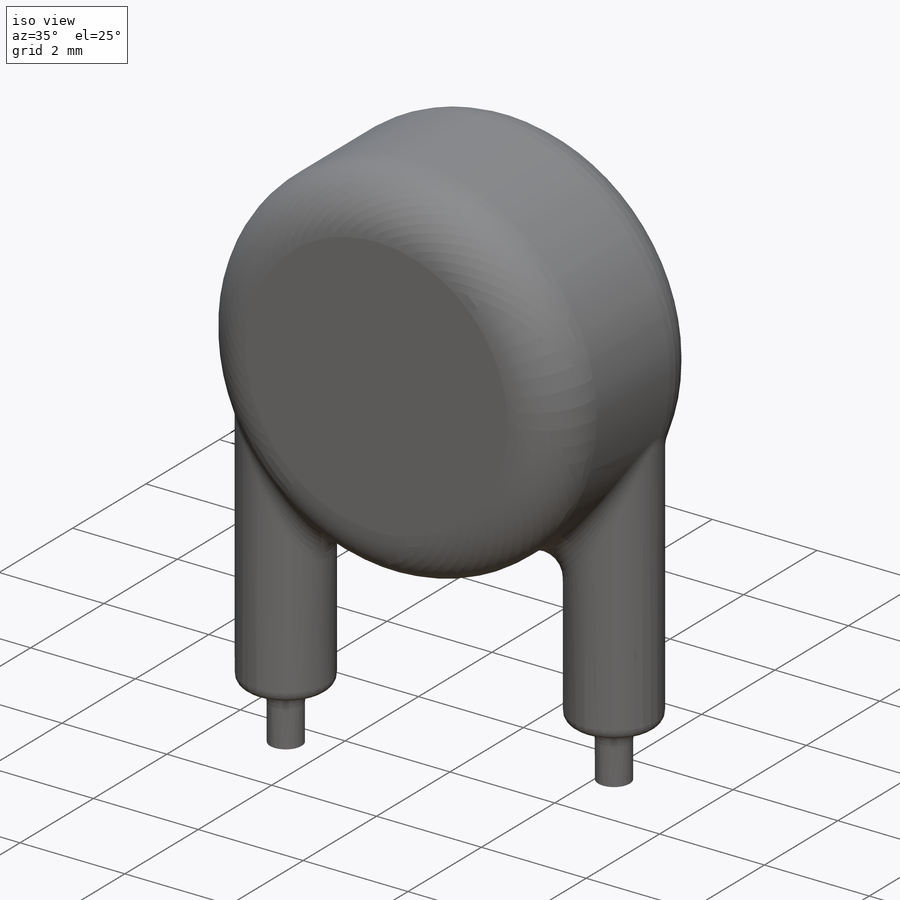
[diagram: iso view]
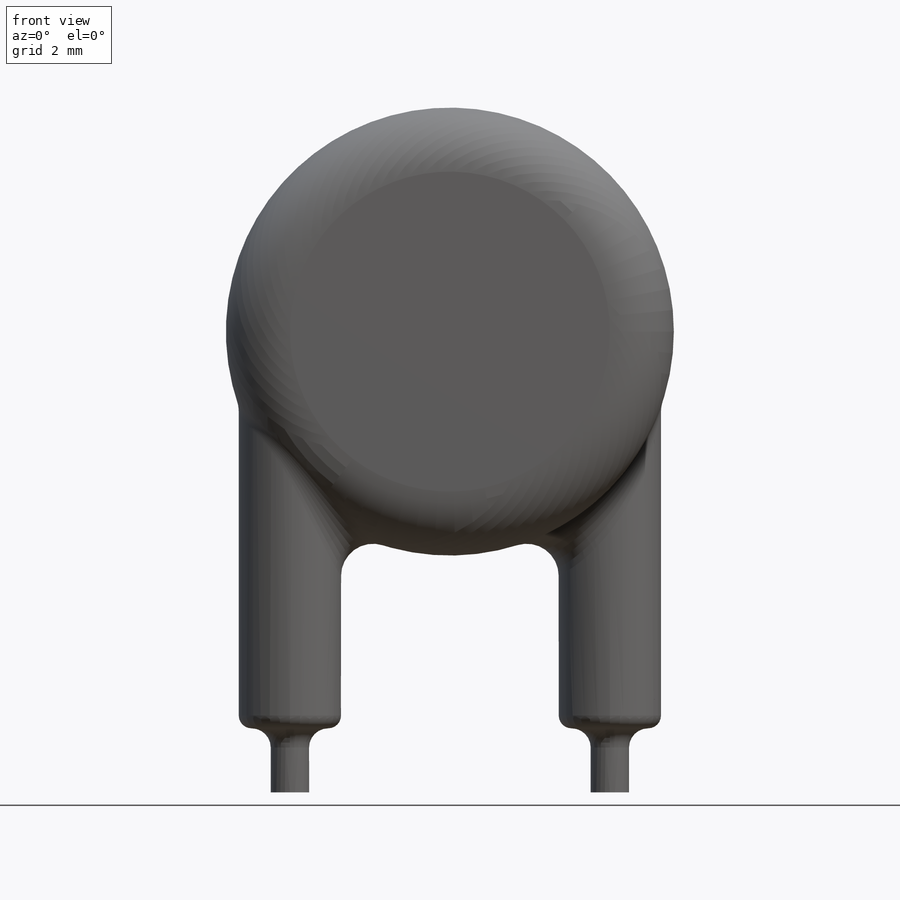
[diagram: front view]
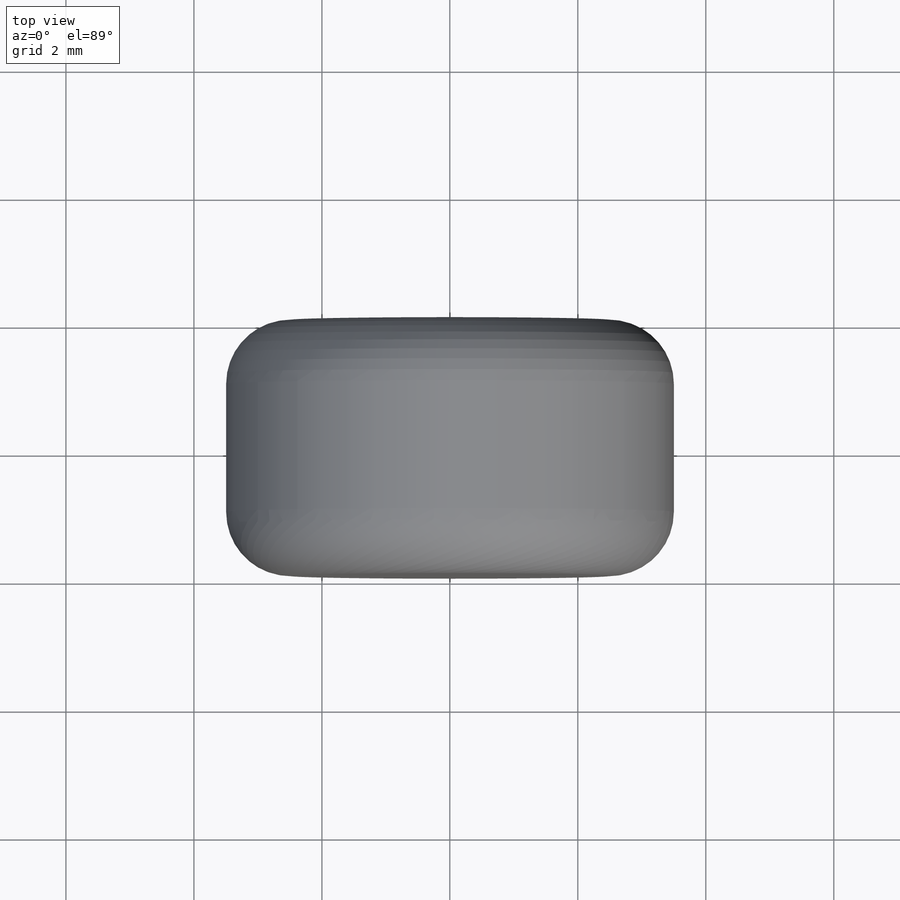
[diagram: top view]
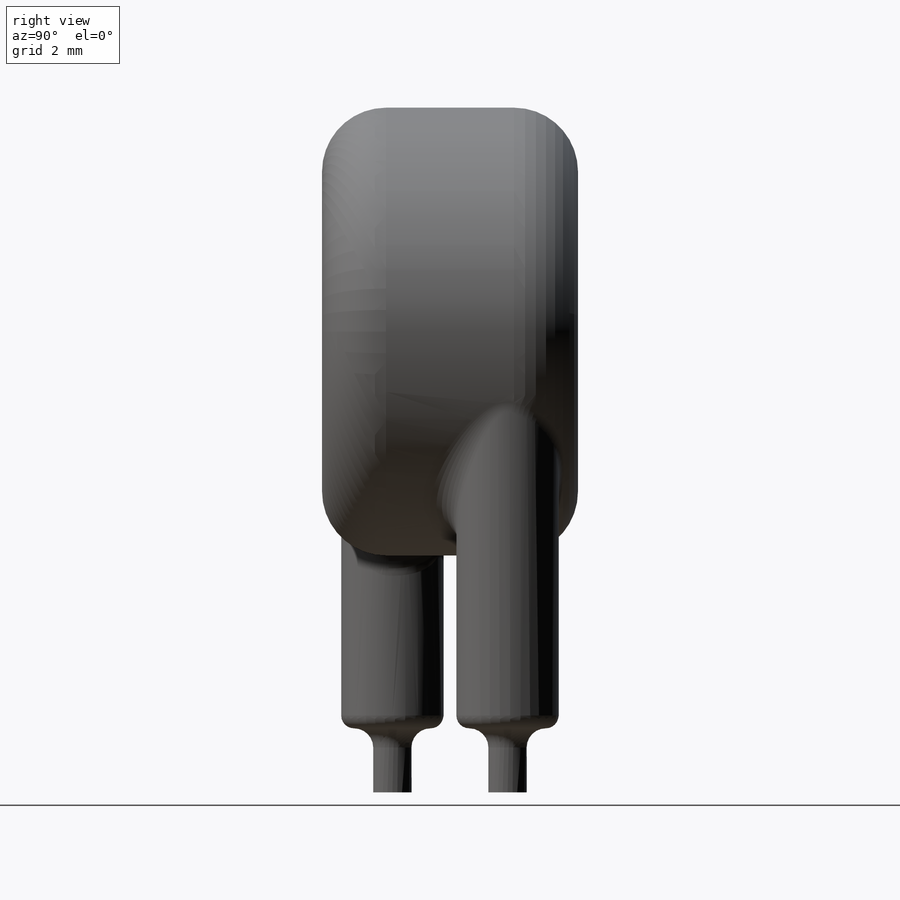
[diagram: right view]
SOLIDWORKS PART (.sldprt)
format: sldprt  version: not decoded by parser v0  size: 367,616 bytes
history: native  units: mm
features: sketch x6, fillet x4, extrude x2, plane x2, sweep x2, material x1 (+16 scaffold rows collapsed)
feature tree (33):
  scaffold x16  (default folders/planes/origin — collapsed)
  material  "Material <not specified>"
  sketch  "Sketch1"  dims[D2=7.0mm D1=2.7mm]
  extrude  "Boss-Extrude1"  Depth=4mm
  fillet  "Fillet1"  Radius=1mm
  sketch  "Sketch2"  dims[c1.D1=1.6mm c1.D2=1.6mm c1.D3=1.6mm c2.D2=2.5mm c2.D3=2.5mm c2.D4=0.9mm c2.D5=0.9mm]
  extrude  "Boss-Extrude2"  Depth=4mm
  fillet  "Fillet2"  Radius=0.5mm
  sketch  "Sketch3"  dims[D1=0.6mm]
  plane  "Plane4"
  sketch  "Sketch5"  dims[c1.D2=1.0mm c1.D3=1.0mm c1.D1=1.0mm c2.D3=6.5mm c2.D4=8.0mm c2.D5=4.5mm]
  sweep  "Sweep2"
  sketch  "Sketch6"  dims[D1=0.6mm]
  plane  "Plane6"
  sketch  "Sketch8"  dims[c1.D2=0.9mm c1.D1=3.2mm c1.D3=4.1mm c2.D1=1.0mm]
  sweep  "Sweep4"
  fillet  "Fillet3"  Radius=0.3mm
  fillet  "Fillet4"  Radius=0.2mm
decode coverage: 12 of 14 modeling features carry decoded parameters
note: suppression state not decoded; provenance and decode notes live in map.json
